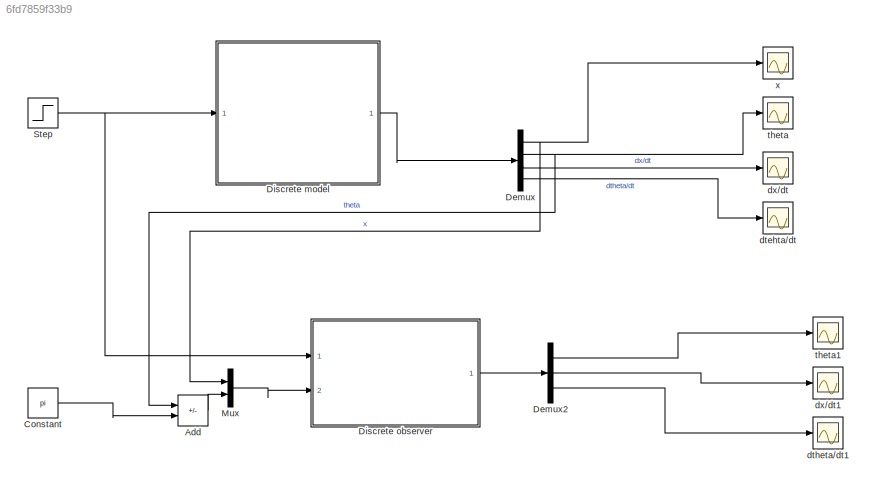
MODEL mdl_6fd7859f33b9
KIND model
CONFIG AbsTol = auto
CONFIG EnableMultiTasking = off
CONFIG FixedStep = auto
CONFIG MaxStep = auto
CONFIG MinStep = auto
CONFIG RelTol = 1e-3
CONFIG SampleTimeConstraint = Unconstrained
CONFIG SolverName = VariableStepAuto
CONFIG StartTime = 0.0
CONFIG StopTime = 10.0
BLOCK [Sum] Add
  IconShape = rectangular
  Inputs = +-
  Ports = [2, 1]
BLOCK [Constant] Constant
  Value = pi
BLOCK [Demux] Demux
  Ports = [1, 4]
BLOCK [Demux] Demux2
  Outputs = 3
  Ports = [1, 3]
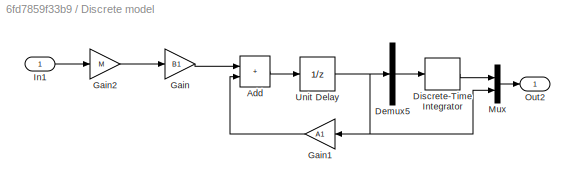
BLOCK [SubSystem] Discrete model
  Ports = [1, 1]
  RequestExecContextInheritance = off
BLOCK [Sum] Discrete model/Add
  IconShape = rectangular
  Ports = [2, 1]
BLOCK [Demux] Discrete model/Demux5
  Outputs = 3
  Ports = [1, 3]
BLOCK [DiscreteIntegrator] Discrete model/Discrete-Time Integrator
  ICPrevOutput = DiscIntNeverNeededParam
  ICPrevScaledInput = DiscIntNeverNeededParam
  Ports = [1, 1]
  SampleTime = 0.1
BLOCK [Gain] Discrete model/Gain
  Gain = B1
  Multiplication = Matrix(K*u)
  SampleTime = 0.1
BLOCK [Gain] Discrete model/Gain1
  Gain = A1
  Multiplication = Matrix(K*u)
  NameLocation = top
  SampleTime = 0.1
BLOCK [Gain] Discrete model/Gain2
  Gain = M
  SampleTime = 0.1
BLOCK [Inport] Discrete model/In1
BLOCK [Mux] Discrete model/Mux
  DisplayOption = bar
  Inputs = 2
  Ports = [2, 1]
BLOCK [Outport] Discrete model/Out2
BLOCK [UnitDelay] Discrete model/Unit Delay
  HasFrameUpgradeWarning = on
  SampleTime = 0.1
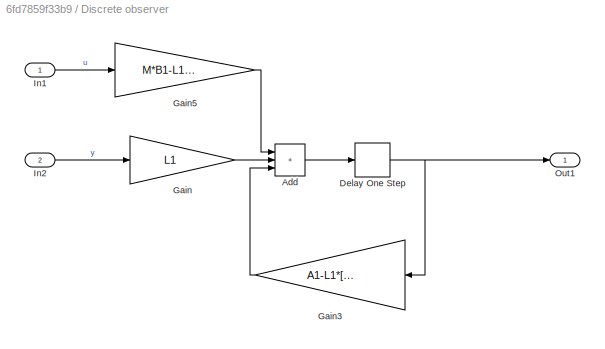
BLOCK [SubSystem] Discrete observer
  Ports = [2, 1]
  RequestExecContextInheritance = off
BLOCK [Sum] Discrete observer/Add
  IconShape = rectangular
  Inputs = +++
  Ports = [3, 1]
BLOCK [Delay] Discrete observer/Delay One Step
  DelayLength = 1
  InputPortMap = u0
  Ports = [1, 1]
BLOCK [Gain] Discrete observer/Gain
  Gain = L1
  Multiplication = Matrix(K*u)
BLOCK [Gain] Discrete observer/Gain3
  Gain = A1-L1*[1 0 0;0 1 0]
  Multiplication = Matrix(K*u)
  NameLocation = top
BLOCK [Gain] Discrete observer/Gain5
  Gain = M*B1-L1*[0;0]
  Multiplication = Matrix(K*u)
BLOCK [Inport] Discrete observer/In1
BLOCK [Inport] Discrete observer/In2
  Port = 2
BLOCK [Outport] Discrete observer/Out1
BLOCK [Mux] Mux
  DisplayOption = bar
  Inputs = 2
  Ports = [2, 1]
BLOCK [Step] Step
  After = 0.3
  SampleTime = 0
BLOCK [Scope] dtehta//dt
  Floating = off
  NumInputPorts = 1
  Ports = [1]
  ScopeSpecificationString = Simulink.scopes.TimeScopeBlockCfg('CurrentConfiguration', extmgr.ConfigurationSet(extmgr.Configuration('Core','General UI',true),extmgr.Configuration('Core','Source UI',true),extmgr.Configuration('Sources','WiredSimulink',true,'DataLogging',true,'DataLoggingVariableName','dtheta','DataLoggingLimitDataPoints',true,'DataLoggingSaveFormat','Array','DataLoggingDecimation','1','DataLoggingDecimateData'...<+1685ch>
BLOCK [Scope] dtheta//dt1
  Floating = off
  NumInputPorts = 1
  Ports = [1]
  ScopeSpecificationString = Simulink.scopes.TimeScopeBlockCfg('CurrentConfiguration', extmgr.ConfigurationSet(extmgr.Configuration('Core','General UI',true),extmgr.Configuration('Core','Source UI',true),extmgr.Configuration('Sources','WiredSimulink',true,'DataLoggingVariableName','dtheta7','DataLogging',true,'DataLoggingLimitDataPoints',true,'DataLoggingDecimateData',true,'DataLoggingSaveFormat','Array'),extmgr.Configuration...<+3938ch>
BLOCK [Scope] dx//dt
  Floating = off
  NumInputPorts = 1
  Ports = [1]
  ScopeSpecificationString = Simulink.scopes.TimeScopeBlockCfg('CurrentConfiguration', extmgr.ConfigurationSet(extmgr.Configuration('Core','General UI',true),extmgr.Configuration('Core','Source UI',true),extmgr.Configuration('Sources','WiredSimulink',true,'DataLogging',true,'DataLoggingVariableName','dx','DataLoggingLimitDataPoints',true,'DataLoggingSaveFormat','Array','DataLoggingDecimation','1','DataLoggingDecimateData',tru...<+1679ch>
BLOCK [Scope] dx//dt1
  Floating = off
  NumInputPorts = 1
  Ports = [1]
  ScopeSpecificationString = Simulink.scopes.TimeScopeBlockCfg('CurrentConfiguration', extmgr.ConfigurationSet(extmgr.Configuration('Core','General UI',true),extmgr.Configuration('Core','Source UI',true),extmgr.Configuration('Sources','WiredSimulink',true,'DataLoggingVariableName','dx7','DataLogging',true,'DataLoggingLimitDataPoints',true,'DataLoggingDecimateData',true,'DataLoggingSaveFormat','Array'),extmgr.Configuration('Vi...<+3878ch>
BLOCK [Scope] theta
  Floating = off
  NumInputPorts = 1
  Ports = [1]
  ScopeSpecificationString = Simulink.scopes.TimeScopeBlockCfg('CurrentConfiguration', extmgr.ConfigurationSet(extmgr.Configuration('Core','General UI',true),extmgr.Configuration('Core','Source UI',true),extmgr.Configuration('Sources','WiredSimulink',true,'DataLogging',true,'DataLoggingVariableName','theta','DataLoggingLimitDataPoints',true,'DataLoggingSaveFormat','Array','DataLoggingDecimation','1','DataLoggingDecimateData',...<+1678ch>
BLOCK [Scope] theta1
  Floating = off
  NumInputPorts = 1
  Ports = [1]
  ScopeSpecificationString = Simulink.scopes.TimeScopeBlockCfg('CurrentConfiguration', extmgr.ConfigurationSet(extmgr.Configuration('Core','General UI',true),extmgr.Configuration('Core','Source UI',true),extmgr.Configuration('Sources','WiredSimulink',true,'DataLoggingVariableName','theta7','DataLogging',true,'DataLoggingLimitDataPoints',true,'DataLoggingDecimateData',true,'DataLoggingSaveFormat','Array'),extmgr.Configuration(...<+3960ch>
BLOCK [Scope] x
  Floating = off
  NumInputPorts = 1
  Ports = [1]
  ScopeSpecificationString = Simulink.scopes.TimeScopeBlockCfg('CurrentConfiguration', extmgr.ConfigurationSet(extmgr.Configuration('Core','General UI',true),extmgr.Configuration('Core','Source UI',true),extmgr.Configuration('Sources','WiredSimulink',true,'DataLogging',true,'DataLoggingVariableName','x','DataLoggingLimitDataPoints',true,'DataLoggingSaveFormat','Array','DataLoggingDecimation','1','DataLoggingDecimateData',true...<+1682ch>
LINE Add:1 -> Mux:2
LINE Constant:1 -> Add:2
LINE Demux2:1 -> theta1:1
LINE Demux2:2 -> dx//dt1:1
LINE Demux2:3 -> dtheta//dt1:1
NET Demux:1 -> Mux:1, x:1
NET Demux:2 -> Add:1, theta:1
LINE Demux:3 -> dx//dt:1
LINE Demux:4 -> dtehta//dt:1
LINE Discrete model/Add:1 -> Discrete model/Unit Delay:1
LINE Discrete model/Demux5:2 -> Discrete model/Discrete-Time Integrator:1
LINE Discrete model/Discrete-Time Integrator:1 -> Discrete model/Mux:1
LINE Discrete model/Gain1:1 -> Discrete model/Add:2
LINE Discrete model/Gain2:1 -> Discrete model/Gain:1
LINE Discrete model/Gain:1 -> Discrete model/Add:1
LINE Discrete model/In1:1 -> Discrete model/Gain2:1
LINE Discrete model/Mux:1 -> Discrete model/Out2:1
NET Discrete model/Unit Delay:1 -> Discrete model/Demux5:1, Discrete model/Gain1:1, Discrete model/Mux:2
LINE Discrete model:1 -> Demux:1
LINE Discrete observer/Add:1 -> Discrete observer/Delay One Step:1
NET Discrete observer/Delay One Step:1 -> Discrete observer/Gain3:1, Discrete observer/Out1:1
LINE Discrete observer/Gain3:1 -> Discrete observer/Add:3
LINE Discrete observer/Gain5:1 -> Discrete observer/Add:1
LINE Discrete observer/Gain:1 -> Discrete observer/Add:2
LINE Discrete observer/In1:1 -> Discrete observer/Gain5:1
LINE Discrete observer/In2:1 -> Discrete observer/Gain:1
LINE Discrete observer:1 -> Demux2:1
LINE Mux:1 -> Discrete observer:2
NET Step:1 -> Discrete model:1, Discrete observer:1
note: NET lines group one-source signal fan-out (src -> all destinations, sorted); 1:1 wires keep LINE
